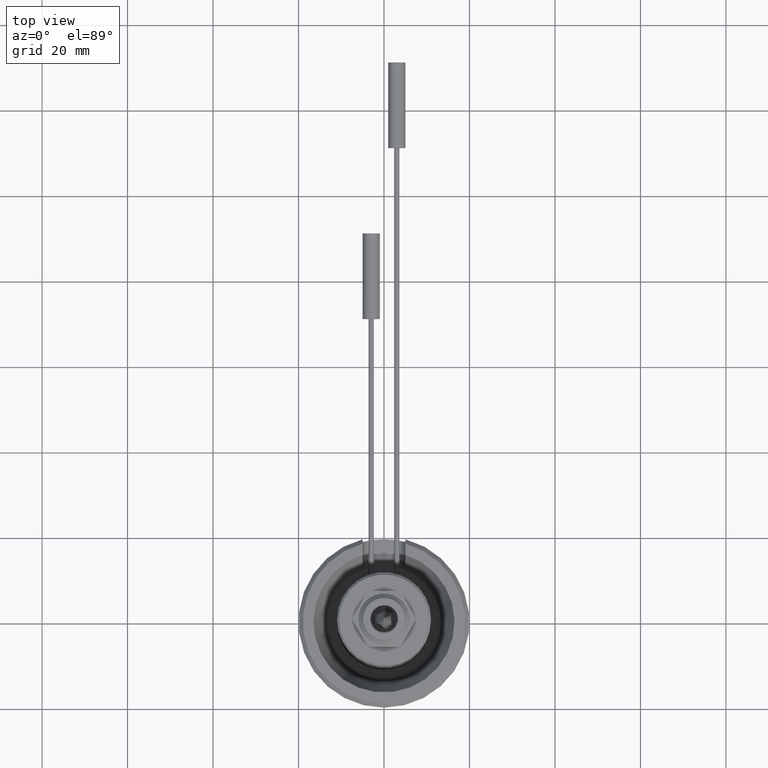
[diagram: clean part render]
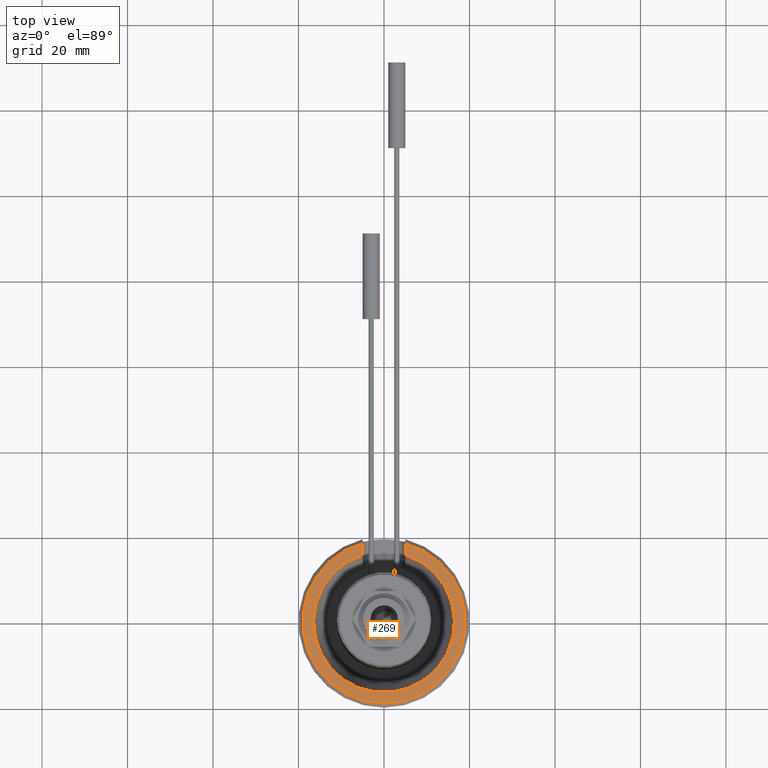
[diagram: same view with one face highlighted and labeled with its STEP entity id]
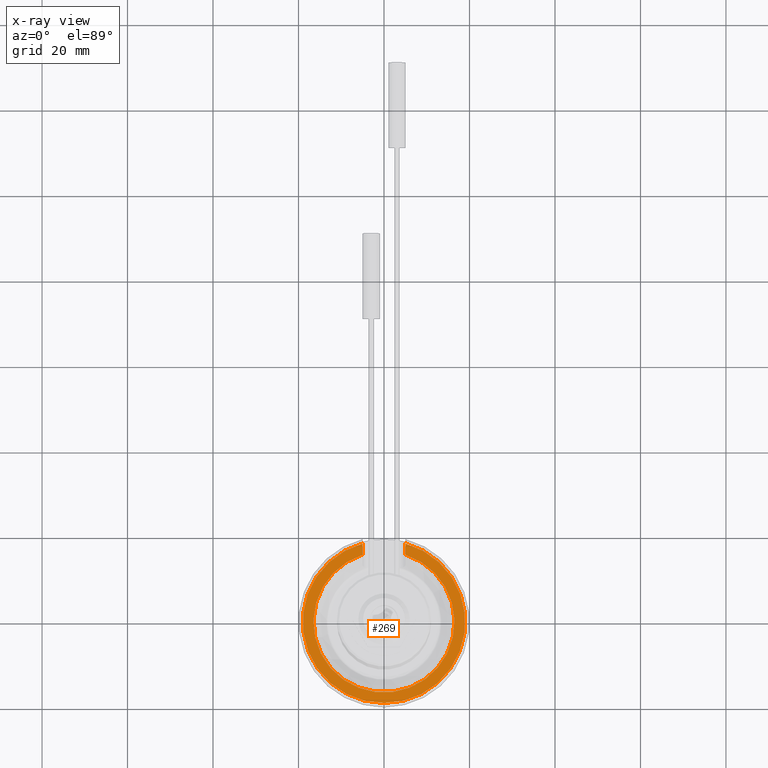
[diagram: x-ray of the same camera — body ghosted, the highlighted face saturated]
A machine part, top view. The second image highlights one B-rep face of the part: STEP entity #269.
The next image is the same camera in x-ray: the body ghosted, the highlighted face saturated — about 0% of this face is hidden behind the body in this view.
In plain terms, the highlighted planar face has unit normal (0, 0, -1).
Its self-contained STEP definition (entity closure, byte-faithful):
#76=PLANE('',#1227);
#129=LINE('',#2210,#173);
#131=LINE('',#2223,#175);
#173=VECTOR('',#1512,1.);
#175=VECTOR('',#1516,1.);
#206=FACE_OUTER_BOUND('',#481,.T.);
#269=ADVANCED_FACE('',(#206),#76,.F.);
#481=EDGE_LOOP('',(#710,#711,#712,#713));
#710=ORIENTED_EDGE('',*,*,#1045,.T.);
#711=ORIENTED_EDGE('',*,*,#1046,.T.);
#712=ORIENTED_EDGE('',*,*,#1041,.F.);
#713=ORIENTED_EDGE('',*,*,#989,.F.);
#865=VERTEX_POINT('',#2025);
#867=VERTEX_POINT('',#2028);
#904=VERTEX_POINT('',#2211);
#905=VERTEX_POINT('',#2222);
#989=EDGE_CURVE('',#865,#867,#1092,.T.);
#1041=EDGE_CURVE('',#867,#904,#129,.T.);
#1045=EDGE_CURVE('',#865,#905,#131,.T.);
#1046=EDGE_CURVE('',#905,#904,#1114,.T.);
#1092=CIRCLE('',#1183,16.4996646888082);
#1114=CIRCLE('',#1226,19.);
#1183=AXIS2_PLACEMENT_3D('',#2027,#1413,#1414);
#1226=AXIS2_PLACEMENT_3D('',#2225,#1519,#1520);
#1227=AXIS2_PLACEMENT_3D('',#2226,#1521,#1522);
#1413=DIRECTION('',(0.,0.,1.));
#1414=DIRECTION('',(1.,0.,0.));
#1512=DIRECTION('',(0.,1.,0.));
#1516=DIRECTION('',(0.,1.,0.));
#1519=DIRECTION('',(0.,0.,1.));
#1520=DIRECTION('',(-1.,0.,0.));
#1521=DIRECTION('',(0.,0.,-1.));
#1522=DIRECTION('',(-1.,0.,0.));
#2025=CARTESIAN_POINT('',(-5.,15.7238333380606,25.));
#2027=CARTESIAN_POINT('',(0.,0.,25.));
#2028=CARTESIAN_POINT('',(5.,15.7238333380606,25.));
#2210=CARTESIAN_POINT('',(5.,11.,25.));
#2211=CARTESIAN_POINT('',(5.,18.3303027798234,25.));
#2222=CARTESIAN_POINT('',(-5.,18.3303027798234,25.));
#2223=CARTESIAN_POINT('',(-5.,11.,25.));
#2225=CARTESIAN_POINT('',(0.,0.,25.));
#2226=CARTESIAN_POINT('',(-20.,0.,25.));